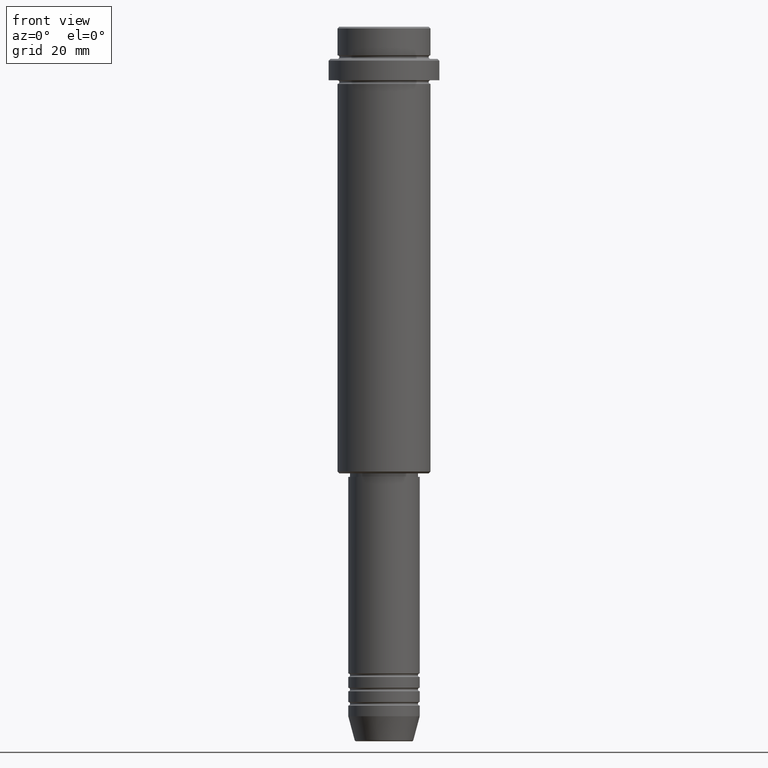
[diagram: clean part render]
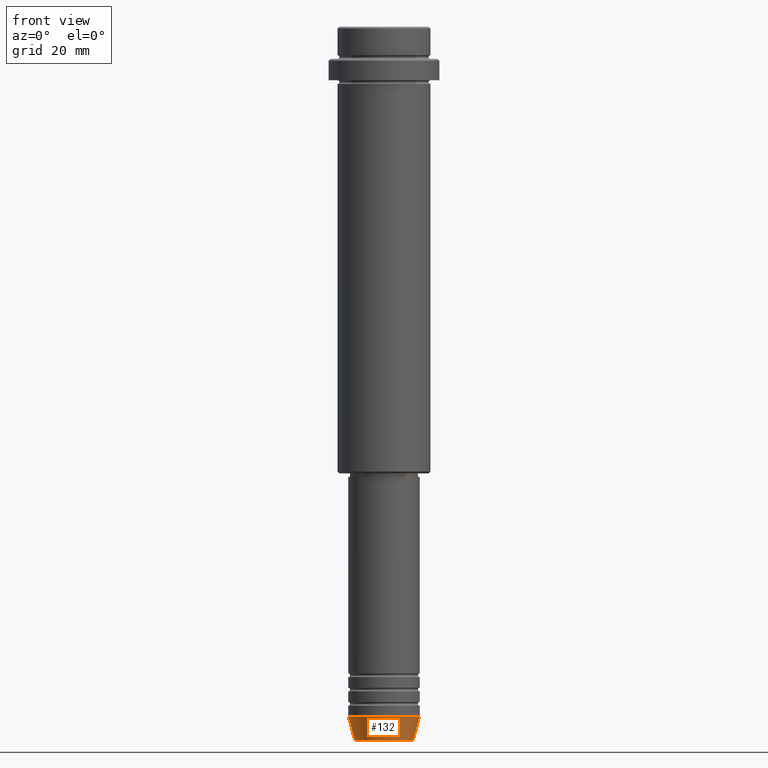
[diagram: same view with one face highlighted and labeled with its STEP entity id]
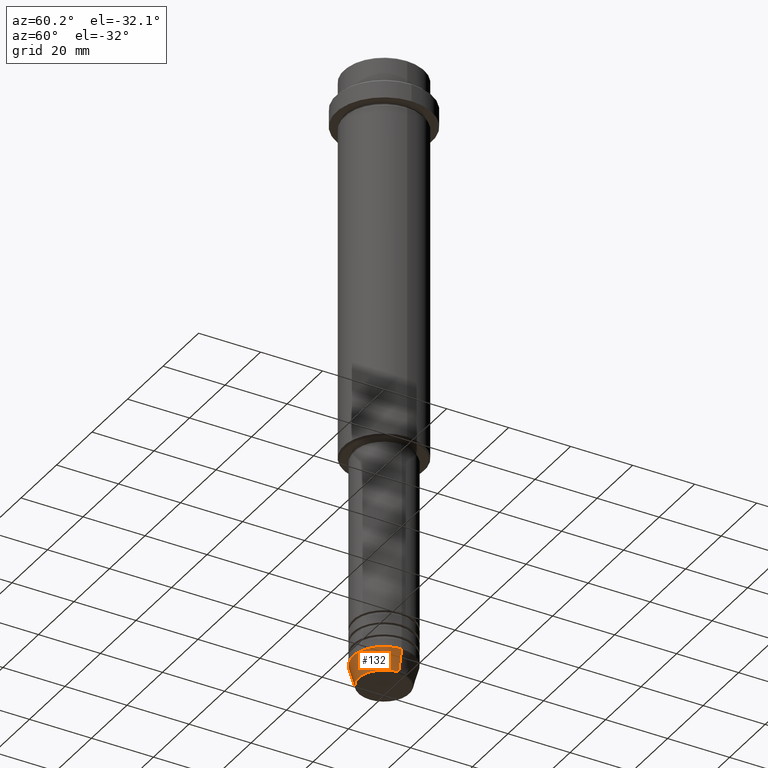
[diagram: same view with one face highlighted and labeled with its STEP entity id]
A machine part, front view. The second image highlights one B-rep face of the part: STEP entity #132.
A second angle (auxiliary view) of the same face is appended — the face is thin or edge-on in the first view.
In plain terms, the highlighted conical surface has half-angle 15 deg.
Its self-contained STEP definition (entity closure, byte-faithful):
#97 = FACE_OUTER_BOUND ( 'NONE', #825, .T. ) ;
#113 = DIRECTION ( 'NONE',  ( 1.000000000000000000, 0.000000000000000000, 0.000000000000000000 ) ) ;
#132 = ADVANCED_FACE ( 'NONE', ( #97 ), #450, .T. ) ;
#197 = EDGE_CURVE ( 'NONE', #1281, #507, #333, .T. ) ;
#322 = ORIENTED_EDGE ( 'NONE', *, *, #328, .F. ) ;
#328 = EDGE_CURVE ( 'NONE', #982, #1089, #700, .T. ) ;
#330 = DIRECTION ( 'NONE',  ( -0.2588190451025213501, 3.169619151431772337E-17, 0.9659258262890680902 ) ) ;
#333 = CIRCLE ( 'NONE', #1383, 8.223655072137191269 ) ;
#356 = CARTESIAN_POINT ( 'NONE',  ( 0.000000000000000000, 0.000000000000000000, -199.6294095225512706 ) ) ;
#375 = ORIENTED_EDGE ( 'NONE', *, *, #1355, .T. ) ;
#450 = CONICAL_SURFACE ( 'NONE', #1248, 10.00000000000000000, 0.2617993877991500740 ) ;
#497 = CARTESIAN_POINT ( 'NONE',  ( 10.00000000000000000, 0.000000000000000000, -193.0000000000000000 ) ) ;
#501 = CARTESIAN_POINT ( 'NONE',  ( -10.00000000000000000, 1.224646799147353256E-15, -193.0000000000000000 ) ) ;
#507 = VERTEX_POINT ( 'NONE', #1288 ) ;
#521 = ORIENTED_EDGE ( 'NONE', *, *, #197, .T. ) ;
#523 = VECTOR ( 'NONE', #330, 1000.000000000000000 ) ;
#655 = AXIS2_PLACEMENT_3D ( 'NONE', #1137, #806, #1152 ) ;
#668 = EDGE_CURVE ( 'NONE', #1281, #982, #672, .T. ) ;
#672 = LINE ( 'NONE', #991, #523 ) ;
#685 = VECTOR ( 'NONE', #927, 1000.000000000000000 ) ;
#700 = CIRCLE ( 'NONE', #655, 10.00000000000000000 ) ;
#708 = LINE ( 'NONE', #497, #685 ) ;
#806 = DIRECTION ( 'NONE',  ( -0.000000000000000000, -0.000000000000000000, 1.000000000000000000 ) ) ;
#825 = EDGE_LOOP ( 'NONE', ( #1007, #521, #375, #322 ) ) ;
#864 = DIRECTION ( 'NONE',  ( -0.000000000000000000, -0.000000000000000000, 1.000000000000000000 ) ) ;
#927 = DIRECTION ( 'NONE',  ( 0.2588190451025213501, 0.000000000000000000, 0.9659258262890680902 ) ) ;
#969 = CARTESIAN_POINT ( 'NONE',  ( 0.000000000000000000, 0.000000000000000000, -193.0000000000000000 ) ) ;
#982 = VERTEX_POINT ( 'NONE', #501 ) ;
#991 = CARTESIAN_POINT ( 'NONE',  ( -10.00000000000000000, 1.224646799147353256E-15, -193.0000000000000000 ) ) ;
#1002 = DIRECTION ( 'NONE',  ( -0.000000000000000000, -0.000000000000000000, 1.000000000000000000 ) ) ;
#1007 = ORIENTED_EDGE ( 'NONE', *, *, #668, .F. ) ;
#1089 = VERTEX_POINT ( 'NONE', #1091 ) ;
#1091 = CARTESIAN_POINT ( 'NONE',  ( 10.00000000000000000, 0.000000000000000000, -193.0000000000000000 ) ) ;
#1132 = CARTESIAN_POINT ( 'NONE',  ( -8.223655072137191269, 1.115877042642912054E-15, -199.6294095225512706 ) ) ;
#1137 = CARTESIAN_POINT ( 'NONE',  ( 0.000000000000000000, 0.000000000000000000, -193.0000000000000000 ) ) ;
#1152 = DIRECTION ( 'NONE',  ( 1.000000000000000000, 0.000000000000000000, 0.000000000000000000 ) ) ;
#1181 = DIRECTION ( 'NONE',  ( 1.000000000000000000, 0.000000000000000000, 0.000000000000000000 ) ) ;
#1248 = AXIS2_PLACEMENT_3D ( 'NONE', #969, #864, #1181 ) ;
#1281 = VERTEX_POINT ( 'NONE', #1132 ) ;
#1288 = CARTESIAN_POINT ( 'NONE',  ( 8.223655072137191269, 0.000000000000000000, -199.6294095225512706 ) ) ;
#1355 = EDGE_CURVE ( 'NONE', #507, #1089, #708, .T. ) ;
#1383 = AXIS2_PLACEMENT_3D ( 'NONE', #356, #1002, #113 ) ;